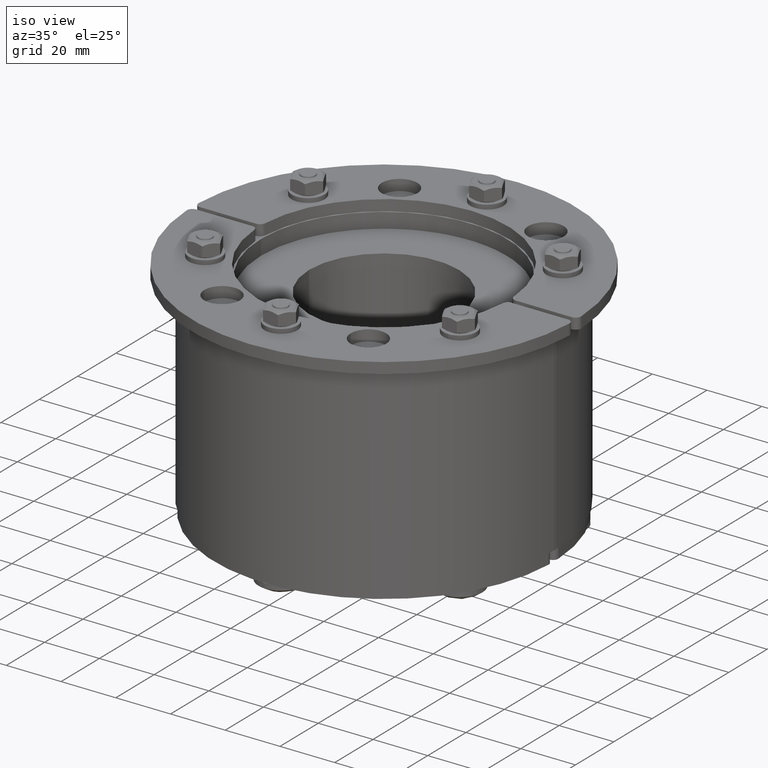
[diagram: clean part render]
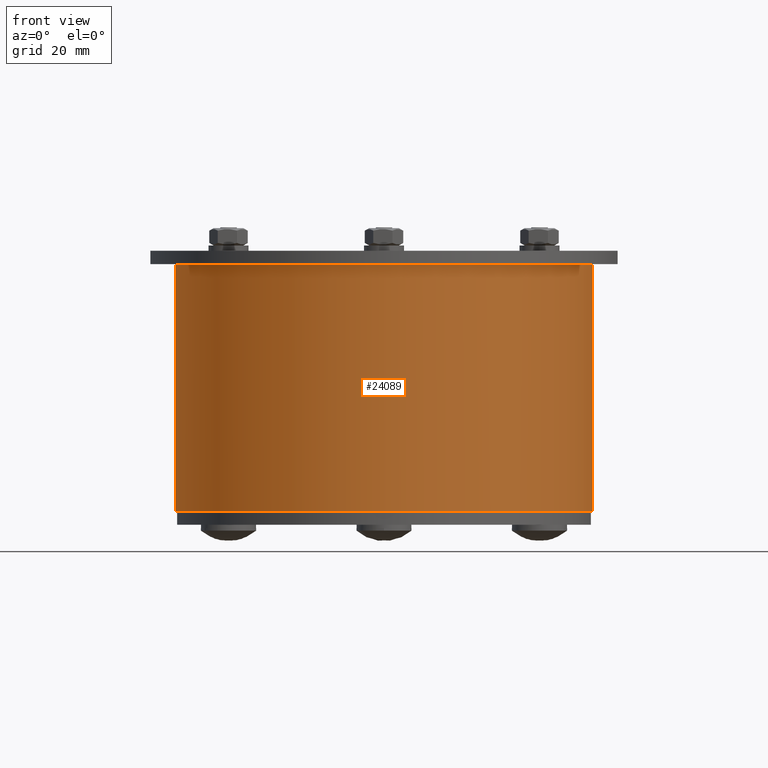
[diagram: tour spotlight — one face highlighted and labeled with its STEP entity id]
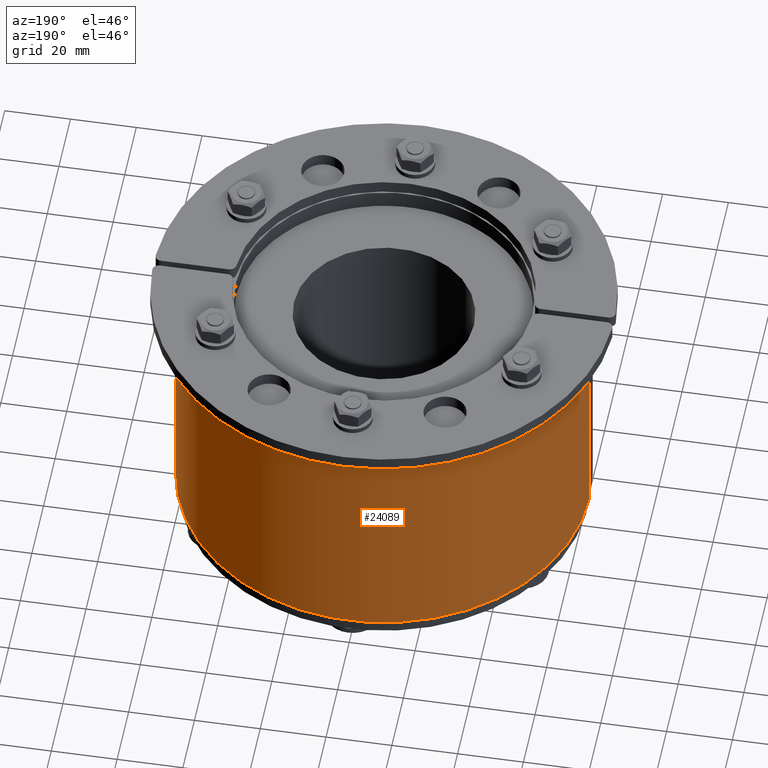
[diagram: tour spotlight — one face highlighted and labeled with its STEP entity id]
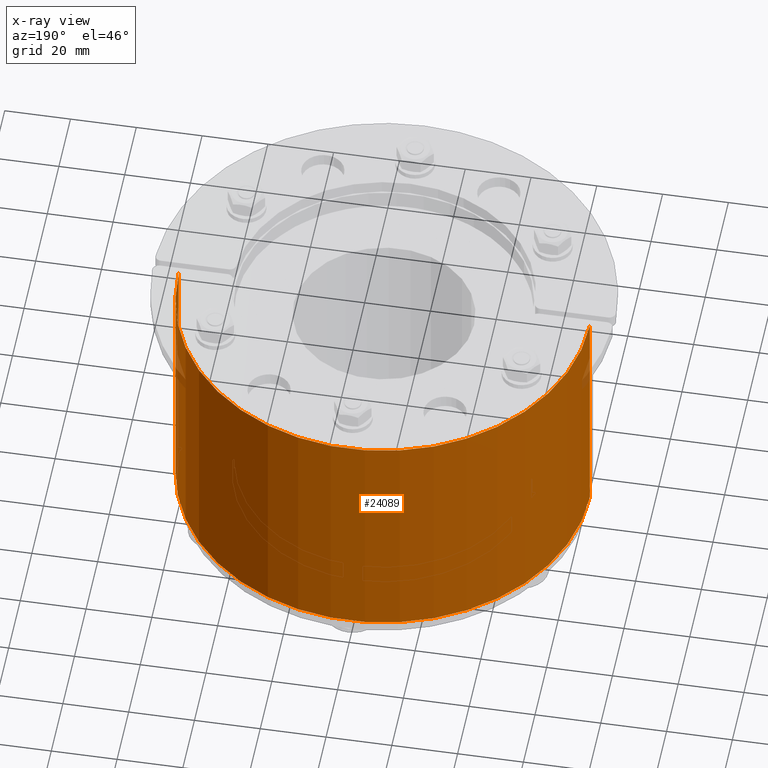
[diagram: x-ray of the same camera — body ghosted, this tour face saturated]
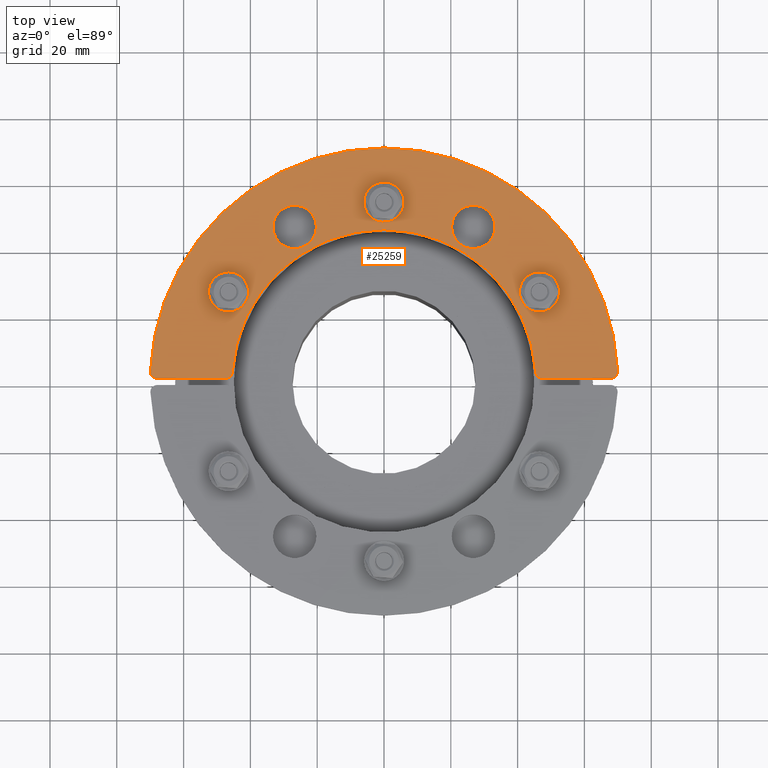
[diagram: tour spotlight — one face highlighted and labeled with its STEP entity id]
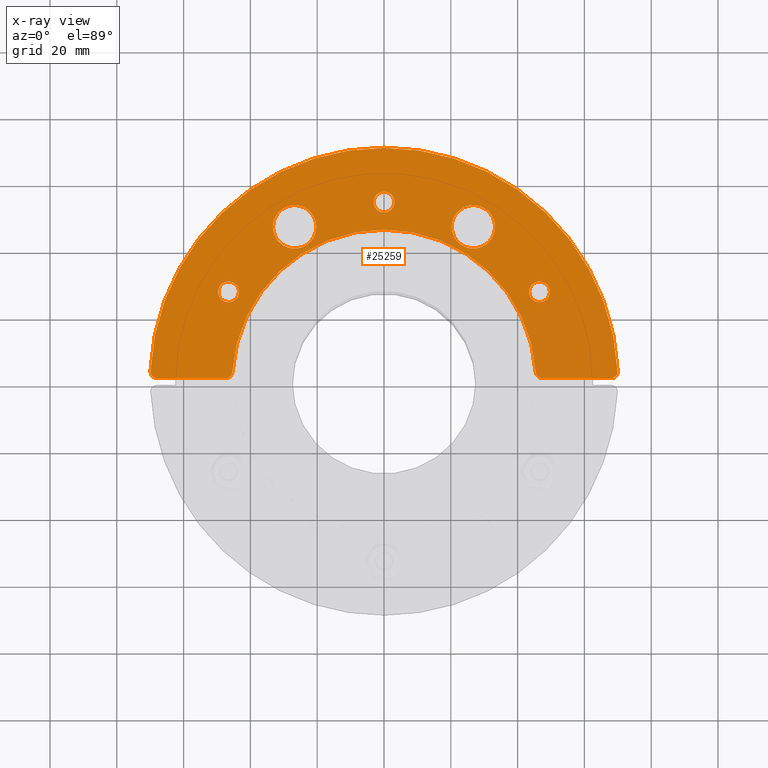
[diagram: x-ray of the same camera — body ghosted, this tour face saturated]
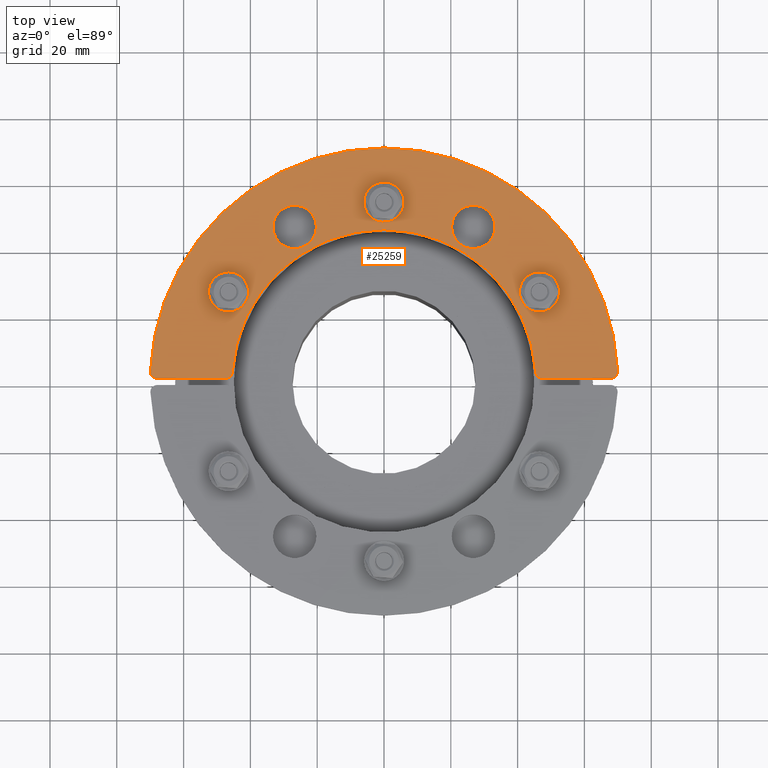
[diagram: tour spotlight — one face highlighted and labeled with its STEP entity id]
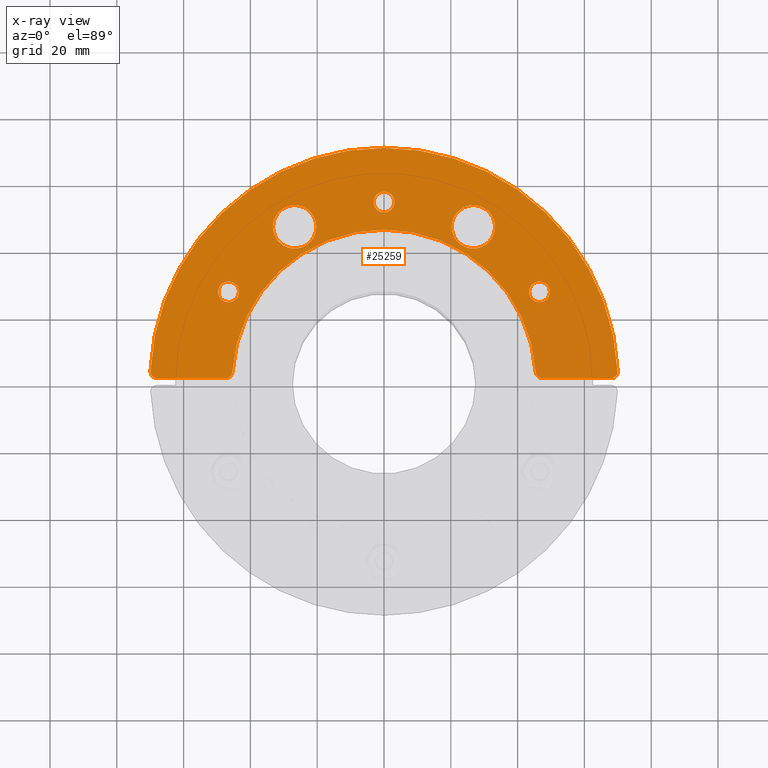
[diagram: x-ray of the same camera — body ghosted, this tour face saturated]
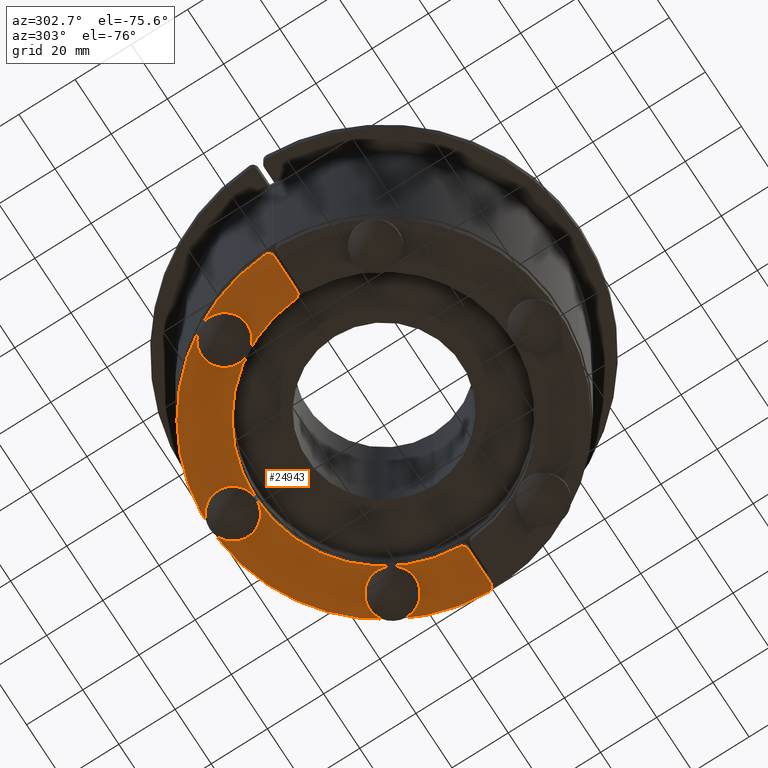
[diagram: tour spotlight — one face highlighted and labeled with its STEP entity id]
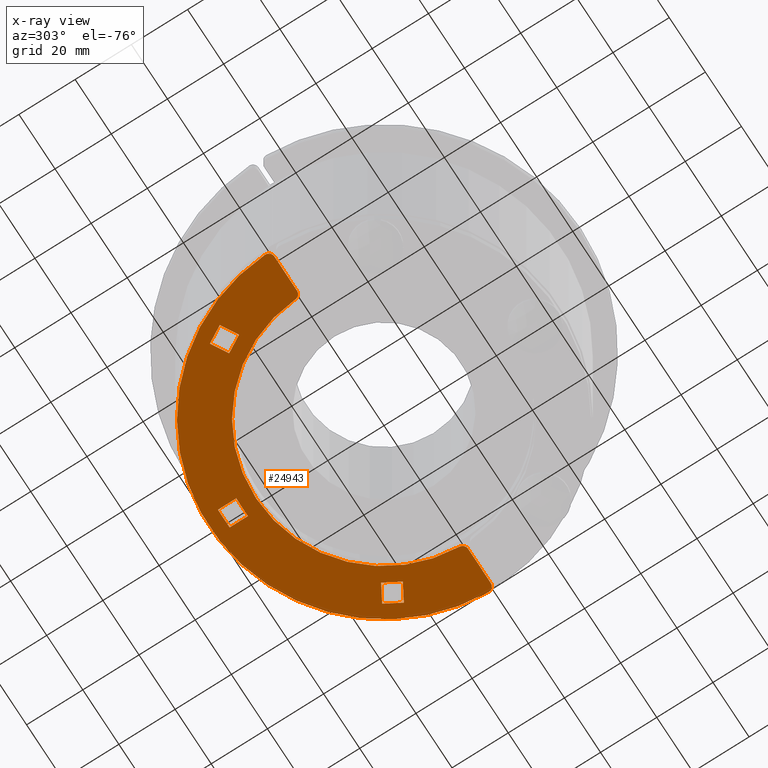
[diagram: x-ray of the same camera — body ghosted, this tour face saturated]
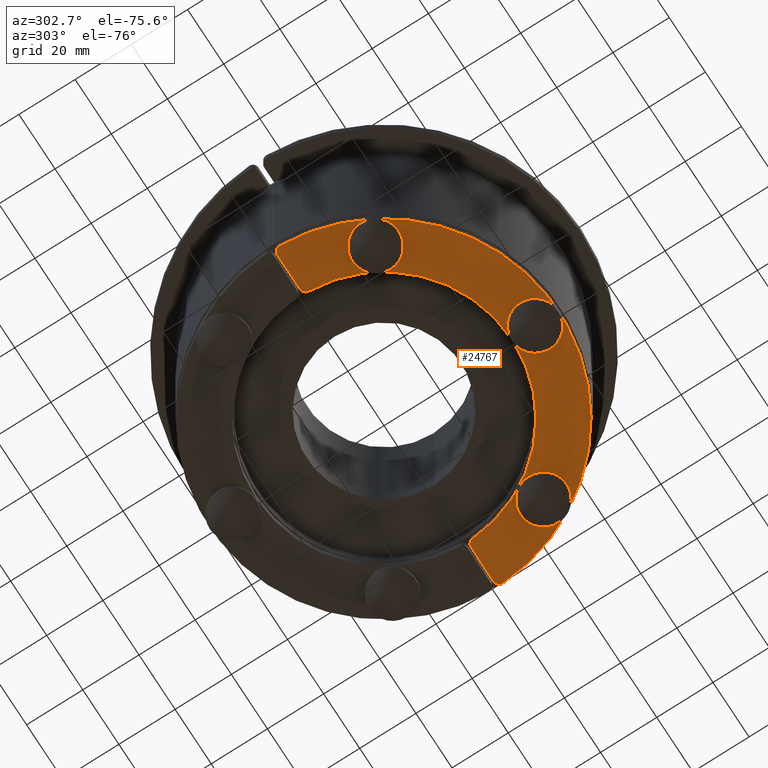
[diagram: tour spotlight — one face highlighted and labeled with its STEP entity id]
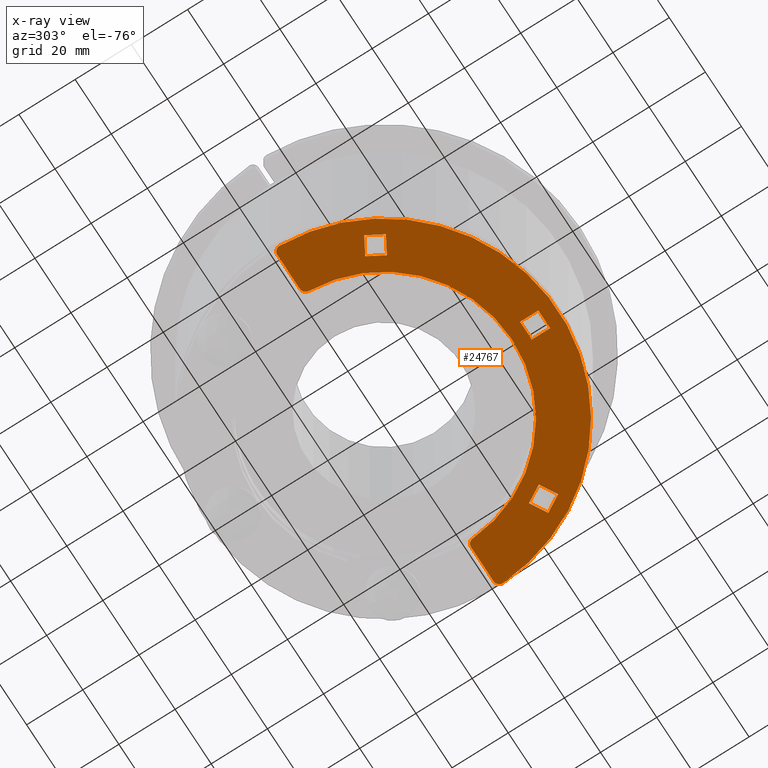
[diagram: x-ray of the same camera — body ghosted, this tour face saturated]
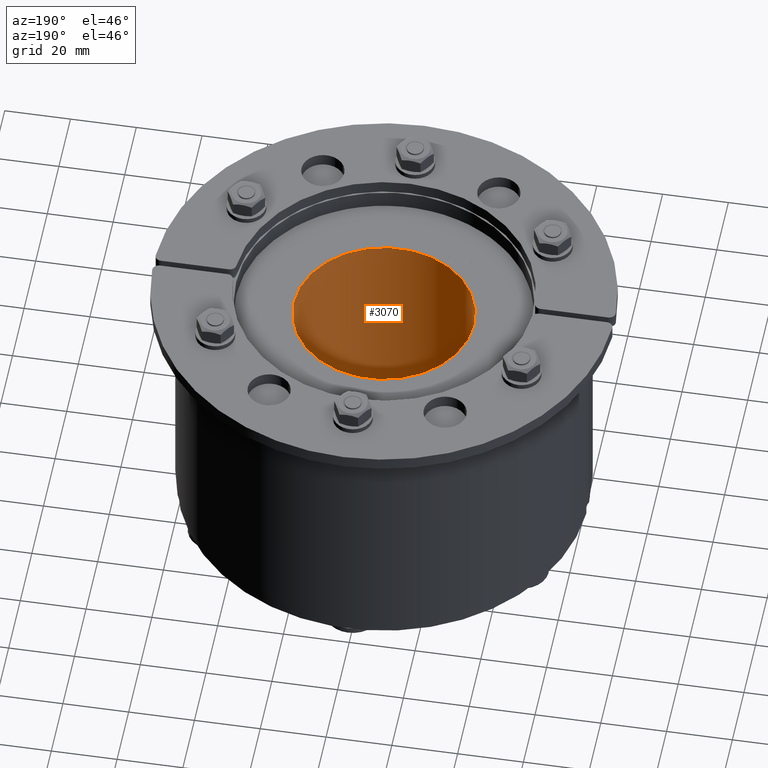
[diagram: tour spotlight — one face highlighted and labeled with its STEP entity id]
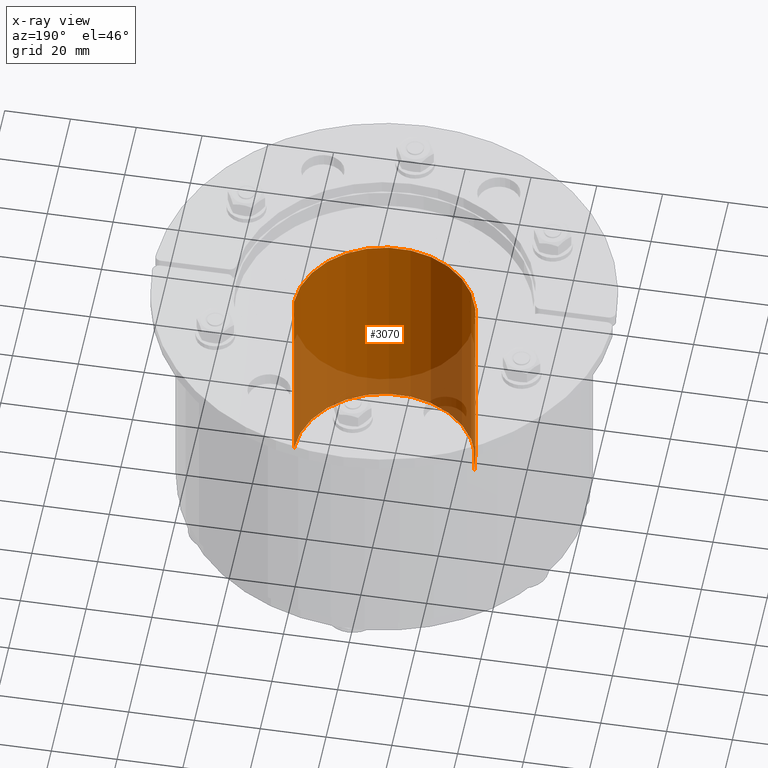
[diagram: x-ray of the same camera — body ghosted, this tour face saturated]
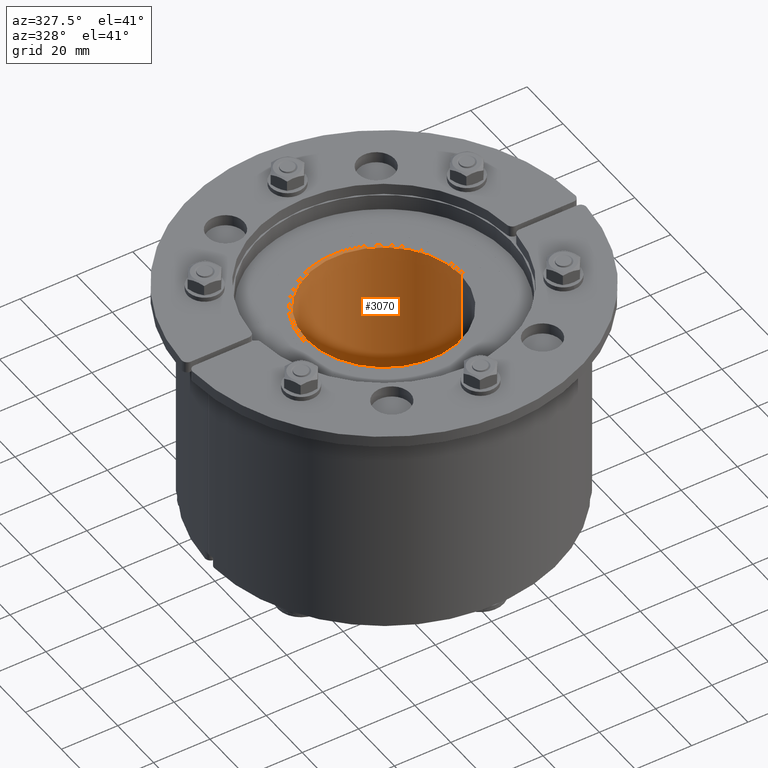
[diagram: tour spotlight — one face highlighted and labeled with its STEP entity id]
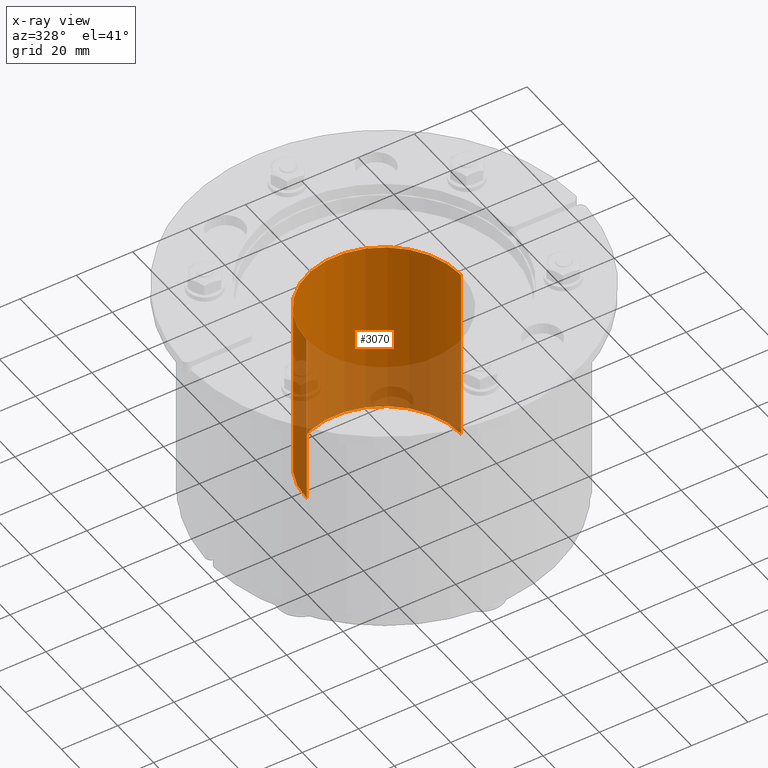
[diagram: x-ray of the same camera — body ghosted, this tour face saturated]
A machine part: a face-by-face anatomy tour. The part has 1790 B-rep faces; the first image is the clean iso view, then the 8 largest visible faces are spotlighted one at a time (largest first), each with its STEP entity span.

Face 1 — front view, entity #24089. In plain terms, the highlighted cylindrical surface (partial cylindrical patch) has radius 62.5 mm, axis along (0, 0, -1).
Definition (entity closure, byte-faithful):
#10103=CARTESIAN_POINT('',(62.497999967998979,-0.5,74.0));
#10104=VERTEX_POINT('',#10103);
#10105=CARTESIAN_POINT('',(-62.497999967998979,-0.5,74.0));
#10106=VERTEX_POINT('',#10105);
#10107=CARTESIAN_POINT('',(0.0,0.0,74.0));
#10108=DIRECTION('',(0.0,0.0,1.0));
#10109=DIRECTION('',(-0.999967999487984,0.008,0.0));
#10110=AXIS2_PLACEMENT_3D('',#10107,#10108,#10109);
#10111=CIRCLE('',#10110,62.500000000000014);
#10112=EDGE_CURVE('',#10104,#10106,#10111,.T.);
#23997=CARTESIAN_POINT('',(62.497999967998979,-0.5,0.0));
#23998=VERTEX_POINT('',#23997);
#24007=CARTESIAN_POINT('',(62.497999967998979,-0.5,0.0));
#24008=DIRECTION('',(0.0,0.0,1.0));
#24009=VECTOR('',#24008,74.0);
#24010=LINE('',#24007,#24009);
#24011=EDGE_CURVE('',#23998,#10104,#24010,.T.);
#24053=CARTESIAN_POINT('',(-62.497999967998979,-0.5,0.0));
#24054=VERTEX_POINT('',#24053);
#24063=CARTESIAN_POINT('',(-62.497999967998979,-0.5,0.0));
#24064=DIRECTION('',(0.0,0.0,1.0));
#24065=VECTOR('',#24064,74.0);
#24066=LINE('',#24063,#24065);
#24067=EDGE_CURVE('',#24054,#10106,#24066,.T.);
#24072=CARTESIAN_POINT('',(0.0,0.0,0.0));
#24073=DIRECTION('',(0.0,0.0,1.0));
#24074=DIRECTION('',(-0.999967999487984,0.008,0.0));
#24075=AXIS2_PLACEMENT_3D('',#24072,#24073,#24074);
#24076=CYLINDRICAL_SURFACE('',#24075,62.500000000000021);
#24077=CARTESIAN_POINT('',(0.0,0.0,0.0));
#24078=DIRECTION('',(0.0,0.0,-1.0));
#24079=DIRECTION('',(-0.999967999487984,0.008,0.0));
#24080=AXIS2_PLACEMENT_3D('',#24077,#24078,#24079);
#24081=CIRCLE('',#24080,62.500000000000014);
#24082=EDGE_CURVE('',#24054,#23998,#24081,.T.);
#24083=ORIENTED_EDGE('',*,*,#24082,.F.);
#24084=ORIENTED_EDGE('',*,*,#24067,.T.);
#24085=ORIENTED_EDGE('',*,*,#10112,.F.);
#24086=ORIENTED_EDGE('',*,*,#24011,.F.);
#24087=EDGE_LOOP('',(#24083,#24084,#24085,#24086));
#24088=FACE_OUTER_BOUND('',#24087,.T.);
#24089=ADVANCED_FACE('',(#24088),#24076,.T.);

Face 2 — auxiliary view, entity #24089. An x-ray twin of the same camera follows (body ghosted, this face saturated) — the face is partly hidden behind the body. In plain terms, the highlighted cylindrical surface (partial cylindrical patch) has radius 62.5 mm, axis along (0, 0, -1).
Definition (entity closure, byte-faithful):
#10103=CARTESIAN_POINT('',(62.497999967998979,-0.5,74.0));
#10104=VERTEX_POINT('',#10103);
#10105=CARTESIAN_POINT('',(-62.497999967998979,-0.5,74.0));
#10106=VERTEX_POINT('',#10105);
#10107=CARTESIAN_POINT('',(0.0,0.0,74.0));
#10108=DIRECTION('',(0.0,0.0,1.0));
#10109=DIRECTION('',(-0.999967999487984,0.008,0.0));
#10110=AXIS2_PLACEMENT_3D('',#10107,#10108,#10109);
#10111=CIRCLE('',#10110,62.500000000000014);
#10112=EDGE_CURVE('',#10104,#10106,#10111,.T.);
#23997=CARTESIAN_POINT('',(62.497999967998979,-0.5,0.0));
#23998=VERTEX_POINT('',#23997);
#24007=CARTESIAN_POINT('',(62.497999967998979,-0.5,0.0));
#24008=DIRECTION('',(0.0,0.0,1.0));
#24009=VECTOR('',#24008,74.0);
#24010=LINE('',#24007,#24009);
#24011=EDGE_CURVE('',#23998,#10104,#24010,.T.);
#24053=CARTESIAN_POINT('',(-62.497999967998979,-0.5,0.0));
#24054=VERTEX_POINT('',#24053);
#24063=CARTESIAN_POINT('',(-62.497999967998979,-0.5,0.0));
#24064=DIRECTION('',(0.0,0.0,1.0));
#24065=VECTOR('',#24064,74.0);
#24066=LINE('',#24063,#24065);
#24067=EDGE_CURVE('',#24054,#10106,#24066,.T.);
#24072=CARTESIAN_POINT('',(0.0,0.0,0.0));
#24073=DIRECTION('',(0.0,0.0,1.0));
#24074=DIRECTION('',(-0.999967999487984,0.008,0.0));
#24075=AXIS2_PLACEMENT_3D('',#24072,#24073,#24074);
#24076=CYLINDRICAL_SURFACE('',#24075,62.500000000000021);
#24077=CARTESIAN_POINT('',(0.0,0.0,0.0));
#24078=DIRECTION('',(0.0,0.0,-1.0));
#24079=DIRECTION('',(-0.999967999487984,0.008,0.0));
#24080=AXIS2_PLACEMENT_3D('',#24077,#24078,#24079);
#24081=CIRCLE('',#24080,62.500000000000014);
#24082=EDGE_CURVE('',#24054,#23998,#24081,.T.);
#24083=ORIENTED_EDGE('',*,*,#24082,.F.);
#24084=ORIENTED_EDGE('',*,*,#24067,.T.);
#24085=ORIENTED_EDGE('',*,*,#10112,.F.);
#24086=ORIENTED_EDGE('',*,*,#24011,.F.);
#24087=EDGE_LOOP('',(#24083,#24084,#24085,#24086));
#24088=FACE_OUTER_BOUND('',#24087,.T.);
#24089=ADVANCED_FACE('',(#24088),#24076,.T.);

Face 3 — top view, entity #25259. An x-ray twin of the same camera follows (body ghosted, this face saturated) — the face is partly hidden behind the body. In plain terms, the highlighted planar face has unit normal (-0, -0, 1).
Definition (entity closure, byte-faithful):
#25047=CARTESIAN_POINT('',(-20.250000000000021,46.33235910246745,0.0));
#25048=VERTEX_POINT('',#25047);
#25049=CARTESIAN_POINT('',(-26.750000000000021,46.33235910246745,0.0));
#25050=DIRECTION('',(0.0,0.0,-1.0));
#25051=DIRECTION('',(-1.0,0.0,0.0));
#25052=AXIS2_PLACEMENT_3D('',#25049,#25050,#25051);
#25053=CIRCLE('',#25052,6.5);
#25054=EDGE_CURVE('',#25048,#25048,#25053,.T.);
#25075=CARTESIAN_POINT('',(33.25,46.332359102467471,0.0));
#25076=VERTEX_POINT('',#25075);
#25077=CARTESIAN_POINT('',(26.75,46.332359102467471,0.0));
#25078=DIRECTION('',(0.0,0.0,-1.0));
#25079=DIRECTION('',(-1.0,0.0,0.0));
#25080=AXIS2_PLACEMENT_3D('',#25077,#25078,#25079);
#25081=CIRCLE('',#25080,6.5);
#25082=EDGE_CURVE('',#25076,#25076,#25081,.T.);
#25103=CARTESIAN_POINT('',(69.931843982324438,3.088235294117641,0.0));
#25104=VERTEX_POINT('',#25103);
#25111=CARTESIAN_POINT('',(67.933791297115164,1.000000000000002,0.0));
#25112=VERTEX_POINT('',#25111);
#25113=CARTESIAN_POINT('',(67.933791297115164,2.999999999999994,0.0));
#25114=DIRECTION('',(0.0,0.0,-1.0));
#25115=DIRECTION('',(0.722536382149308,-0.691332898443715,0.0));
#25116=AXIS2_PLACEMENT_3D('',#25113,#25114,#25115);
#25117=CIRCLE('',#25116,2.0);
#25118=EDGE_CURVE('',#25104,#25112,#25117,.T.);
#25135=CARTESIAN_POINT('',(47.405168494585055,1.000000000000002,0.0));
#25136=VERTEX_POINT('',#25135);
#25137=CARTESIAN_POINT('',(67.933791297115178,1.000000000000002,0.0));
#25138=DIRECTION('',(-1.0,0.0,0.0));
#25139=VECTOR('',#25138,20.528622802530116);
#25140=LINE('',#25137,#25139);
#25141=EDGE_CURVE('',#25112,#25136,#25140,.T.);
#25160=CARTESIAN_POINT('',(-1.088769E-014,33.01283094405192,0.0));
#25161=DIRECTION('',(0.0,0.0,1.0));
#25162=DIRECTION('',(1.0,0.0,0.0));
#25163=AXIS2_PLACEMENT_3D('',#25160,#25161,#25162);
#25164=PLANE('',#25163);
#25165=ORIENTED_EDGE('',*,*,#25118,.F.);
#25166=CARTESIAN_POINT('',(-69.931843982324438,3.08823529411764,0.0));
#25167=VERTEX_POINT('',#25166);
#25168=CARTESIAN_POINT('',(0.0,0.0,0.0));
#25169=DIRECTION('',(0.0,0.0,-1.0));
#25170=DIRECTION('',(-0.999897953976978,-0.014285714285714,0.0));
#25171=AXIS2_PLACEMENT_3D('',#25168,#25169,#25170);
#25172=CIRCLE('',#25171,70.0);
#25173=EDGE_CURVE('',#25167,#25104,#25172,.T.);
#25174=ORIENTED_EDGE('',*,*,#25173,.F.);
#25175=CARTESIAN_POINT('',(-67.933791297115164,0.999999999999992,0.0));
#25176=VERTEX_POINT('',#25175);
#25177=CARTESIAN_POINT('',(-67.933791297115164,2.999999999999992,0.0));
#25178=DIRECTION('',(0.0,0.0,-1.0));
#25179=DIRECTION('',(-0.722536382149307,-0.691332898443717,0.0));
#25180=AXIS2_PLACEMENT_3D('',#25177,#25178,#25179);
#25181=CIRCLE('',#25180,2.0);
#25182=EDGE_CURVE('',#25176,#25167,#25181,.T.);
#25183=ORIENTED_EDGE('',*,*,#25182,.F.);
#25184=CARTESIAN_POINT('',(-47.405168494585055,0.999999999999994,0.0));
#25185=VERTEX_POINT('',#25184);
#25186=CARTESIAN_POINT('',(-47.405168494585062,0.999999999999994,0.0));
#25187=DIRECTION('',(-1.0,0.0,0.0));
#25188=VECTOR('',#25187,20.528622802530101);
#25189=LINE('',#25186,#25188);
#25190=EDGE_CURVE('',#25185,#25176,#25189,.T.);
#25191=ORIENTED_EDGE('',*,*,#25190,.F.);
#25192=CARTESIAN_POINT('',(-45.409161400076215,2.873684210526307,0.0));
#25193=VERTEX_POINT('',#25192);
#25194=CARTESIAN_POINT('',(-47.405168494585055,2.99999999999999,0.0));
#25195=DIRECTION('',(0.0,0.0,-1.0));
#25196=DIRECTION('',(0.684412925529303,-0.729094607968281,0.0));
#25197=AXIS2_PLACEMENT_3D('',#25194,#25195,#25196);
#25198=CIRCLE('',#25197,2.0);
#25199=EDGE_CURVE('',#25193,#25185,#25198,.T.);
#25200=ORIENTED_EDGE('',*,*,#25199,.F.);
#25201=CARTESIAN_POINT('',(45.409161400076208,2.873684210526318,0.0));
#25202=VERTEX_POINT('',#25201);
#25203=CARTESIAN_POINT('',(0.0,0.0,0.0));
#25204=DIRECTION('',(0.0,0.0,1.0));
#25205=DIRECTION('',(0.999758454102757,0.021978021978022,0.0));
#25206=AXIS2_PLACEMENT_3D('',#25203,#25204,#25205);
#25207=CIRCLE('',#25206,45.5);
#25208=EDGE_CURVE('',#25202,#25193,#25207,.T.);
#25209=ORIENTED_EDGE('',*,*,#25208,.F.);
#25210=CARTESIAN_POINT('',(47.405168494585055,3.000000000000003,0.0));
#25211=DIRECTION('',(0.0,0.0,-1.0));
#25212=DIRECTION('',(-0.684412925529302,-0.729094607968282,0.0));
#25213=AXIS2_PLACEMENT_3D('',#25210,#25211,#25212);
#25214=CIRCLE('',#25213,2.0);
#25215=EDGE_CURVE('',#25136,#25202,#25214,.T.);
#25216=ORIENTED_EDGE('',*,*,#25215,.F.);
#25217=ORIENTED_EDGE('',*,*,#25141,.F.);
#25218=EDGE_LOOP('',(#25165,#25174,#25183,#25191,#25200,#25209,#25216,#25217));
#25219=FACE_OUTER_BOUND('',#25218,.T.);
#25220=ORIENTED_EDGE('',*,*,#25054,.T.);
#25221=EDGE_LOOP('',(#25220));
#25222=FACE_BOUND('',#25221,.T.);
#25223=ORIENTED_EDGE('',*,*,#25082,.T.);
#25224=EDGE_LOOP('',(#25223));
#25225=FACE_BOUND('',#25224,.T.);
#25226=CARTESIAN_POINT('',(-43.448865453413568,26.875000000000021,0.0));
#25227=VERTEX_POINT('',#25226);
#25228=CARTESIAN_POINT('',(-46.548865453413569,26.875000000000021,0.0));
#25229=DIRECTION('',(0.0,0.0,-1.0));
#25230=DIRECTION('',(-1.0,0.0,0.0));
#25231=AXIS2_PLACEMENT_3D('',#25228,#25229,#25230);
#25232=CIRCLE('',#25231,3.100000000000001);
#25233=EDGE_CURVE('',#25227,#25227,#25232,.T.);
#25234=ORIENTED_EDGE('',*,*,#25233,.T.);
#25235=EDGE_LOOP('',(#25234));
#25236=FACE_BOUND('',#25235,.T.);
#25237=CARTESIAN_POINT('',(49.648865453413578,26.875000000000007,0.0));
#25238=VERTEX_POINT('',#25237);
#25239=CARTESIAN_POINT('',(46.548865453413569,26.875000000000007,0.0));
#25240=DIRECTION('',(0.0,0.0,-1.0));
#25241=DIRECTION('',(-1.0,0.0,0.0));
#25242=AXIS2_PLACEMENT_3D('',#25239,#25240,#25241);
#25243=CIRCLE('',#25242,3.100000000000001);
#25244=EDGE_CURVE('',#25238,#25238,#25243,.T.);
#25245=ORIENTED_EDGE('',*,*,#25244,.T.);
#25246=EDGE_LOOP('',(#25245));
#25247=FACE_BOUND('',#25246,.T.);
#25248=CARTESIAN_POINT('',(3.099999999999999,53.75,0.0));
#25249=VERTEX_POINT('',#25248);
#25250=CARTESIAN_POINT('',(-1.500175E-015,53.75,0.0));
#25251=DIRECTION('',(0.0,0.0,-1.0));
#25252=DIRECTION('',(-1.0,0.0,0.0));
#25253=AXIS2_PLACEMENT_3D('',#25250,#25251,#25252);
#25254=CIRCLE('',#25253,3.100000000000001);
#25255=EDGE_CURVE('',#25249,#25249,#25254,.T.);
#25256=ORIENTED_EDGE('',*,*,#25255,.T.);
#25257=EDGE_LOOP('',(#25256));
#25258=FACE_BOUND('',#25257,.T.);
#25259=ADVANCED_FACE('',(#25219,#25222,#25225,#25236,#25247,#25258),#25164,.T.);

Face 4 — top view, entity #25259. An x-ray twin of the same camera follows (body ghosted, this face saturated) — the face is partly hidden behind the body. In plain terms, the highlighted planar face has unit normal (0, -0, 1).
Definition (entity closure, byte-faithful):
#25047=CARTESIAN_POINT('',(-20.250000000000021,46.33235910246745,0.0));
#25048=VERTEX_POINT('',#25047);
#25049=CARTESIAN_POINT('',(-26.750000000000021,46.33235910246745,0.0));
#25050=DIRECTION('',(0.0,0.0,-1.0));
#25051=DIRECTION('',(-1.0,0.0,0.0));
#25052=AXIS2_PLACEMENT_3D('',#25049,#25050,#25051);
#25053=CIRCLE('',#25052,6.5);
#25054=EDGE_CURVE('',#25048,#25048,#25053,.T.);
#25075=CARTESIAN_POINT('',(33.25,46.332359102467471,0.0));
#25076=VERTEX_POINT('',#25075);
#25077=CARTESIAN_POINT('',(26.75,46.332359102467471,0.0));
#25078=DIRECTION('',(0.0,0.0,-1.0));
#25079=DIRECTION('',(-1.0,0.0,0.0));
#25080=AXIS2_PLACEMENT_3D('',#25077,#25078,#25079);
#25081=CIRCLE('',#25080,6.5);
#25082=EDGE_CURVE('',#25076,#25076,#25081,.T.);
#25103=CARTESIAN_POINT('',(69.931843982324438,3.088235294117641,0.0));
#25104=VERTEX_POINT('',#25103);
#25111=CARTESIAN_POINT('',(67.933791297115164,1.000000000000002,0.0));
#25112=VERTEX_POINT('',#25111);
#25113=CARTESIAN_POINT('',(67.933791297115164,2.999999999999994,0.0));
#25114=DIRECTION('',(0.0,0.0,-1.0));
#25115=DIRECTION('',(0.722536382149308,-0.691332898443715,0.0));
#25116=AXIS2_PLACEMENT_3D('',#25113,#25114,#25115);
#25117=CIRCLE('',#25116,2.0);
#25118=EDGE_CURVE('',#25104,#25112,#25117,.T.);
#25135=CARTESIAN_POINT('',(47.405168494585055,1.000000000000002,0.0));
#25136=VERTEX_POINT('',#25135);
#25137=CARTESIAN_POINT('',(67.933791297115178,1.000000000000002,0.0));
#25138=DIRECTION('',(-1.0,0.0,0.0));
#25139=VECTOR('',#25138,20.528622802530116);
#25140=LINE('',#25137,#25139);
#25141=EDGE_CURVE('',#25112,#25136,#25140,.T.);
#25160=CARTESIAN_POINT('',(-1.088769E-014,33.01283094405192,0.0));
#25161=DIRECTION('',(0.0,0.0,1.0));
#25162=DIRECTION('',(1.0,0.0,0.0));
#25163=AXIS2_PLACEMENT_3D('',#25160,#25161,#25162);
#25164=PLANE('',#25163);
#25165=ORIENTED_EDGE('',*,*,#25118,.F.);
#25166=CARTESIAN_POINT('',(-69.931843982324438,3.08823529411764,0.0));
#25167=VERTEX_POINT('',#25166);
#25168=CARTESIAN_POINT('',(0.0,0.0,0.0));
#25169=DIRECTION('',(0.0,0.0,-1.0));
#25170=DIRECTION('',(-0.999897953976978,-0.014285714285714,0.0));
#25171=AXIS2_PLACEMENT_3D('',#25168,#25169,#25170);
#25172=CIRCLE('',#25171,70.0);
#25173=EDGE_CURVE('',#25167,#25104,#25172,.T.);
#25174=ORIENTED_EDGE('',*,*,#25173,.F.);
#25175=CARTESIAN_POINT('',(-67.933791297115164,0.999999999999992,0.0));
#25176=VERTEX_POINT('',#25175);
#25177=CARTESIAN_POINT('',(-67.933791297115164,2.999999999999992,0.0));
#25178=DIRECTION('',(0.0,0.0,-1.0));
#25179=DIRECTION('',(-0.722536382149307,-0.691332898443717,0.0));
#25180=AXIS2_PLACEMENT_3D('',#25177,#25178,#25179);
#25181=CIRCLE('',#25180,2.0);
#25182=EDGE_CURVE('',#25176,#25167,#25181,.T.);
#25183=ORIENTED_EDGE('',*,*,#25182,.F.);
#25184=CARTESIAN_POINT('',(-47.405168494585055,0.999999999999994,0.0));
#25185=VERTEX_POINT('',#25184);
#25186=CARTESIAN_POINT('',(-47.405168494585062,0.999999999999994,0.0));
#25187=DIRECTION('',(-1.0,0.0,0.0));
#25188=VECTOR('',#25187,20.528622802530101);
#25189=LINE('',#25186,#25188);
#25190=EDGE_CURVE('',#25185,#25176,#25189,.T.);
#25191=ORIENTED_EDGE('',*,*,#25190,.F.);
#25192=CARTESIAN_POINT('',(-45.409161400076215,2.873684210526307,0.0));
#25193=VERTEX_POINT('',#25192);
#25194=CARTESIAN_POINT('',(-47.405168494585055,2.99999999999999,0.0));
#25195=DIRECTION('',(0.0,0.0,-1.0));
#25196=DIRECTION('',(0.684412925529303,-0.729094607968281,0.0));
#25197=AXIS2_PLACEMENT_3D('',#25194,#25195,#25196);
#25198=CIRCLE('',#25197,2.0);
#25199=EDGE_CURVE('',#25193,#25185,#25198,.T.);
#25200=ORIENTED_EDGE('',*,*,#25199,.F.);
#25201=CARTESIAN_POINT('',(45.409161400076208,2.873684210526318,0.0));
#25202=VERTEX_POINT('',#25201);
#25203=CARTESIAN_POINT('',(0.0,0.0,0.0));
#25204=DIRECTION('',(0.0,0.0,1.0));
#25205=DIRECTION('',(0.999758454102757,0.021978021978022,0.0));
#25206=AXIS2_PLACEMENT_3D('',#25203,#25204,#25205);
#25207=CIRCLE('',#25206,45.5);
#25208=EDGE_CURVE('',#25202,#25193,#25207,.T.);
#25209=ORIENTED_EDGE('',*,*,#25208,.F.);
#25210=CARTESIAN_POINT('',(47.405168494585055,3.000000000000003,0.0));
#25211=DIRECTION('',(0.0,0.0,-1.0));
#25212=DIRECTION('',(-0.684412925529302,-0.729094607968282,0.0));
#25213=AXIS2_PLACEMENT_3D('',#25210,#25211,#25212);
#25214=CIRCLE('',#25213,2.0);
#25215=EDGE_CURVE('',#25136,#25202,#25214,.T.);
#25216=ORIENTED_EDGE('',*,*,#25215,.F.);
#25217=ORIENTED_EDGE('',*,*,#25141,.F.);
#25218=EDGE_LOOP('',(#25165,#25174,#25183,#25191,#25200,#25209,#25216,#25217));
#25219=FACE_OUTER_BOUND('',#25218,.T.);
#25220=ORIENTED_EDGE('',*,*,#25054,.T.);
#25221=EDGE_LOOP('',(#25220));
#25222=FACE_BOUND('',#25221,.T.);
#25223=ORIENTED_EDGE('',*,*,#25082,.T.);
#25224=EDGE_LOOP('',(#25223));
#25225=FACE_BOUND('',#25224,.T.);
#25226=CARTESIAN_POINT('',(-43.448865453413568,26.875000000000021,0.0));
#25227=VERTEX_POINT('',#25226);
#25228=CARTESIAN_POINT('',(-46.548865453413569,26.875000000000021,0.0));
#25229=DIRECTION('',(0.0,0.0,-1.0));
#25230=DIRECTION('',(-1.0,0.0,0.0));
#25231=AXIS2_PLACEMENT_3D('',#25228,#25229,#25230);
#25232=CIRCLE('',#25231,3.100000000000001);
#25233=EDGE_CURVE('',#25227,#25227,#25232,.T.);
#25234=ORIENTED_EDGE('',*,*,#25233,.T.);
#25235=EDGE_LOOP('',(#25234));
#25236=FACE_BOUND('',#25235,.T.);
#25237=CARTESIAN_POINT('',(49.648865453413578,26.875000000000007,0.0));
#25238=VERTEX_POINT('',#25237);
#25239=CARTESIAN_POINT('',(46.548865453413569,26.875000000000007,0.0));
#25240=DIRECTION('',(0.0,0.0,-1.0));
#25241=DIRECTION('',(-1.0,0.0,0.0));
#25242=AXIS2_PLACEMENT_3D('',#25239,#25240,#25241);
#25243=CIRCLE('',#25242,3.100000000000001);
#25244=EDGE_CURVE('',#25238,#25238,#25243,.T.);
#25245=ORIENTED_EDGE('',*,*,#25244,.T.);
#25246=EDGE_LOOP('',(#25245));
#25247=FACE_BOUND('',#25246,.T.);
#25248=CARTESIAN_POINT('',(3.099999999999999,53.75,0.0));
#25249=VERTEX_POINT('',#25248);
#25250=CARTESIAN_POINT('',(-1.500175E-015,53.75,0.0));
#25251=DIRECTION('',(0.0,0.0,-1.0));
#25252=DIRECTION('',(-1.0,0.0,0.0));
#25253=AXIS2_PLACEMENT_3D('',#25250,#25251,#25252);
#25254=CIRCLE('',#25253,3.100000000000001);
#25255=EDGE_CURVE('',#25249,#25249,#25254,.T.);
#25256=ORIENTED_EDGE('',*,*,#25255,.T.);
#25257=EDGE_LOOP('',(#25256));
#25258=FACE_BOUND('',#25257,.T.);
#25259=ADVANCED_FACE('',(#25219,#25222,#25225,#25236,#25247,#25258),#25164,.T.);

Face 5 — auxiliary view, entity #24943. An x-ray twin of the same camera follows (body ghosted, this face saturated) — the face is partly hidden behind the body. In plain terms, the highlighted planar face has unit normal (0, -0, 1).
Definition (entity closure, byte-faithful):
#24259=CARTESIAN_POINT('',(3.249999999999999,50.500000000000007,-4.0));
#24260=VERTEX_POINT('',#24259);
#24267=CARTESIAN_POINT('',(-3.250000000000001,50.499999999999986,-4.0));
#24268=VERTEX_POINT('',#24267);
#24269=CARTESIAN_POINT('',(-3.250000000000001,50.499999999999979,-4.0));
#24270=DIRECTION('',(1.0,0.0,0.0));
#24271=VECTOR('',#24270,6.5);
#24272=LINE('',#24269,#24271);
#24273=EDGE_CURVE('',#24268,#24260,#24272,.T.);
#24298=CARTESIAN_POINT('',(-3.250000000000011,56.999999999999993,-4.0));
#24299=VERTEX_POINT('',#24298);
#24300=CARTESIAN_POINT('',(-3.250000000000011,56.999999999999993,-4.0));
#24301=DIRECTION('',(0.0,-1.0,0.0));
#24302=VECTOR('',#24301,6.500000000000007);
#24303=LINE('',#24300,#24302);
#24304=EDGE_CURVE('',#24299,#24268,#24303,.T.);
#24329=CARTESIAN_POINT('',(3.249999999999989,57.000000000000014,-4.0));
#24330=VERTEX_POINT('',#24329);
#24331=CARTESIAN_POINT('',(3.24999999999999,57.000000000000007,-4.0));
#24332=DIRECTION('',(-1.0,0.0,0.0));
#24333=VECTOR('',#24332,6.5);
#24334=LINE('',#24331,#24333);
#24335=EDGE_CURVE('',#24330,#24299,#24334,.T.);
#24358=CARTESIAN_POINT('',(3.249999999999999,50.500000000000007,-4.0));
#24359=DIRECTION('',(0.0,1.0,0.0));
#24360=VECTOR('',#24359,6.500000000000007);
#24361=LINE('',#24358,#24360);
#24362=EDGE_CURVE('',#24260,#24330,#24361,.T.);
#24383=CARTESIAN_POINT('',(47.738448015713004,31.314582562299421,-4.0));
#24384=VERTEX_POINT('',#24383);
#24391=CARTESIAN_POINT('',(50.988448015712997,25.685417437700568,-4.0));
#24392=VERTEX_POINT('',#24391);
#24393=CARTESIAN_POINT('',(50.988448015712997,25.685417437700572,-4.0));
#24394=DIRECTION('',(-0.499999999999999,0.866025403784439,0.0));
#24395=VECTOR('',#24394,6.499999999999998);
#24396=LINE('',#24393,#24395);
#24397=EDGE_CURVE('',#24392,#24384,#24396,.T.);
#24422=CARTESIAN_POINT('',(45.359282891114148,22.435417437700572,-4.0));
#24423=VERTEX_POINT('',#24422);
#24424=CARTESIAN_POINT('',(45.359282891114148,22.435417437700568,-4.0));
#24425=DIRECTION('',(0.866025403784439,0.499999999999999,0.0));
#24426=VECTOR('',#24425,6.500000000000003);
#24427=LINE('',#24424,#24426);
#24428=EDGE_CURVE('',#24423,#24392,#24427,.T.);
#24453=CARTESIAN_POINT('',(42.109282891114148,28.064582562299421,-4.0));
#24454=VERTEX_POINT('',#24453);
#24455=CARTESIAN_POINT('',(42.109282891114155,28.064582562299421,-4.0));
#24456=DIRECTION('',(0.5,-0.866025403784439,0.0));
#24457=VECTOR('',#24456,6.500000000000001);
#24458=LINE('',#24455,#24457);
#24459=EDGE_CURVE('',#24454,#24423,#24458,.T.);
#24482=CARTESIAN_POINT('',(47.738448015713011,31.314582562299421,-4.0));
#24483=DIRECTION('',(-0.866025403784439,-0.499999999999999,0.0));
#24484=VECTOR('',#24483,6.500000000000011);
#24485=LINE('',#24482,#24484);
#24486=EDGE_CURVE('',#24384,#24454,#24485,.T.);
#24507=CARTESIAN_POINT('',(-50.988448015712997,25.685417437700583,-4.0));
#24508=VERTEX_POINT('',#24507);
#24515=CARTESIAN_POINT('',(-47.738448015712976,31.314582562299424,-4.0));
#24516=VERTEX_POINT('',#24515);
#24517=CARTESIAN_POINT('',(-47.738448015712976,31.314582562299424,-4.0));
#24518=DIRECTION('',(-0.500000000000003,-0.866025403784437,0.0));
#24519=VECTOR('',#24518,6.499999999999999);
#24520=LINE('',#24517,#24519);
#24521=EDGE_CURVE('',#24516,#24508,#24520,.T.);
#24546=CARTESIAN_POINT('',(-42.109282891114141,28.064582562299414,-4.0));
#24547=VERTEX_POINT('',#24546);
#24548=CARTESIAN_POINT('',(-42.109282891114141,28.064582562299414,-4.0));
#24549=DIRECTION('',(-0.866025403784437,0.500000000000002,0.0));
#24550=VECTOR('',#24549,6.499999999999991);
#24551=LINE('',#24548,#24550);
#24552=EDGE_CURVE('',#24547,#24516,#24551,.T.);
#24577=CARTESIAN_POINT('',(-45.359282891114141,22.435417437700565,-4.0));
#24578=VERTEX_POINT('',#24577);
#24579=CARTESIAN_POINT('',(-45.359282891114141,22.435417437700565,-4.0));
#24580=DIRECTION('',(0.5,0.866025403784439,0.0));
#24581=VECTOR('',#24580,6.499999999999998);
#24582=LINE('',#24579,#24581);
#24583=EDGE_CURVE('',#24578,#24547,#24582,.T.);
#24606=CARTESIAN_POINT('',(-50.988448015713004,25.685417437700579,-4.0));
#24607=DIRECTION('',(0.866025403784438,-0.500000000000002,0.0));
#24608=VECTOR('',#24607,6.500000000000013);
#24609=LINE('',#24606,#24608);
#24610=EDGE_CURVE('',#24508,#24578,#24609,.T.);
#24621=CARTESIAN_POINT('',(-47.434164902525694,0.5,-4.0));
#24622=VERTEX_POINT('',#24621);
#24623=CARTESIAN_POINT('',(-45.436936906629874,2.394736842105269,-4.0));
#24624=VERTEX_POINT('',#24623);
#24625=CARTESIAN_POINT('',(-47.434164902525694,2.500000000000007,-4.0));
#24626=DIRECTION('',(0.0,0.0,1.0));
#24627=DIRECTION('',(0.688247201611684,-0.725476250110013,0.0));
#24628=AXIS2_PLACEMENT_3D('',#24625,#24626,#24627);
#24629=CIRCLE('',#24628,2.0);
#24630=EDGE_CURVE('',#24622,#24624,#24629,.T.);
#24672=CARTESIAN_POINT('',(-59.947894041408993,0.5,-4.0));
#24673=VERTEX_POINT('',#24672);
#24680=CARTESIAN_POINT('',(-47.434164902525687,0.5,-4.0));
#24681=DIRECTION('',(-1.0,0.0,0.0));
#24682=VECTOR('',#24681,12.513729138883306);
#24683=LINE('',#24680,#24682);
#24684=EDGE_CURVE('',#24622,#24673,#24683,.T.);
#24773=CARTESIAN_POINT('',(-61.946157176122639,2.583333333333333,-4.0));
#24774=VERTEX_POINT('',#24773);
#24775=CARTESIAN_POINT('',(-59.947894041408993,2.5,-4.0));
#24776=DIRECTION('',(0.0,0.0,1.0));
#24777=DIRECTION('',(-0.721687836487034,-0.692218655243171,0.0));
#24778=AXIS2_PLACEMENT_3D('',#24775,#24776,#24777);
#24779=CIRCLE('',#24778,2.0);
#24780=EDGE_CURVE('',#24774,#24673,#24779,.T.);
#24800=CARTESIAN_POINT('',(61.946157176122639,2.583333333333321,-4.0));
#24801=VERTEX_POINT('',#24800);
#24808=CARTESIAN_POINT('',(0.0,0.0,-4.0));
#24809=DIRECTION('',(0.0,0.0,-1.0));
#24810=DIRECTION('',(-0.999967481261068,-0.008064516129032,0.0));
#24811=AXIS2_PLACEMENT_3D('',#24808,#24809,#24810);
#24812=CIRCLE('',#24811,62.0);
#24813=EDGE_CURVE('',#24774,#24801,#24812,.T.);
#24823=CARTESIAN_POINT('',(45.436936906629874,2.394736842105262,-4.0));
#24824=VERTEX_POINT('',#24823);
#24825=CARTESIAN_POINT('',(47.434164902525694,0.5,-4.0));
#24826=VERTEX_POINT('',#24825);
#24827=CARTESIAN_POINT('',(47.434164902525694,2.5,-4.0));
#24828=DIRECTION('',(0.0,0.0,1.0));
#24829=DIRECTION('',(-0.688247201611685,-0.725476250110012,0.0));
#24830=AXIS2_PLACEMENT_3D('',#24827,#24828,#24829);
#24831=CIRCLE('',#24830,2.0);
#24832=EDGE_CURVE('',#24824,#24826,#24831,.T.);
#24856=CARTESIAN_POINT('',(0.0,0.0,-4.0));
#24857=DIRECTION('',(0.0,0.0,1.0));
#24858=DIRECTION('',(0.999939618995809,0.010989010989011,0.0));
#24859=AXIS2_PLACEMENT_3D('',#24856,#24857,#24858);
#24860=CIRCLE('',#24859,45.499999999999993);
#24861=EDGE_CURVE('',#24824,#24624,#24860,.T.);
#24873=CARTESIAN_POINT('',(59.947894041408993,0.5,-4.0));
#24874=VERTEX_POINT('',#24873);
#24875=CARTESIAN_POINT('',(59.947894041408993,2.499999999999988,-4.0));
#24876=DIRECTION('',(0.0,0.0,1.0));
#24877=DIRECTION('',(0.721687836487036,-0.692218655243169,0.0));
#24878=AXIS2_PLACEMENT_3D('',#24875,#24876,#24877);
#24879=CIRCLE('',#24878,2.0);
#24880=EDGE_CURVE('',#24874,#24801,#24879,.T.);
#24899=CARTESIAN_POINT('',(59.947894041409,0.5,-4.0));
#24900=DIRECTION('',(-1.0,0.0,0.0));
#24901=VECTOR('',#24900,12.513729138883306);
#24902=LINE('',#24899,#24901);
#24903=EDGE_CURVE('',#24874,#24826,#24902,.T.);
#24910=CARTESIAN_POINT('',(-2.806819E-015,31.207203141182049,-4.0));
#24911=DIRECTION('',(0.0,0.0,1.0));
#24912=DIRECTION('',(1.0,0.0,0.0));
#24913=AXIS2_PLACEMENT_3D('',#24910,#24911,#24912);
#24914=PLANE('',#24913);
#24915=ORIENTED_EDGE('',*,*,#24630,.F.);
#24916=ORIENTED_EDGE('',*,*,#24684,.T.);
#24917=ORIENTED_EDGE('',*,*,#24780,.F.);
#24918=ORIENTED_EDGE('',*,*,#24813,.T.);
#24919=ORIENTED_EDGE('',*,*,#24880,.F.);
#24920=ORIENTED_EDGE('',*,*,#24903,.T.);
#24921=ORIENTED_EDGE('',*,*,#24832,.F.);
#24922=ORIENTED_EDGE('',*,*,#24861,.T.);
#24923=EDGE_LOOP('',(#24915,#24916,#24917,#24918,#24919,#24920,#24921,#24922));
#24924=FACE_OUTER_BOUND('',#24923,.T.);
#24925=ORIENTED_EDGE('',*,*,#24335,.T.);
#24926=ORIENTED_EDGE('',*,*,#24304,.T.);
#24927=ORIENTED_EDGE('',*,*,#24273,.T.);
#24928=ORIENTED_EDGE('',*,*,#24362,.T.);
#24929=EDGE_LOOP('',(#24925,#24926,#24927,#24928));
#24930=FACE_BOUND('',#24929,.T.);
#24931=ORIENTED_EDGE('',*,*,#24459,.T.);
#24932=ORIENTED_EDGE('',*,*,#24428,.T.);
#24933=ORIENTED_EDGE('',*,*,#24397,.T.);
#24934=ORIENTED_EDGE('',*,*,#24486,.T.);
#24935=EDGE_LOOP('',(#24931,#24932,#24933,#24934));
#24936=FACE_BOUND('',#24935,.T.);
#24937=ORIENTED_EDGE('',*,*,#24583,.T.);
#24938=ORIENTED_EDGE('',*,*,#24552,.T.);
#24939=ORIENTED_EDGE('',*,*,#24521,.T.);
#24940=ORIENTED_EDGE('',*,*,#24610,.T.);
#24941=EDGE_LOOP('',(#24937,#24938,#24939,#24940));
#24942=FACE_BOUND('',#24941,.T.);
#24943=ADVANCED_FACE('',(#24924,#24930,#24936,#24942),#24914,.F.);

Face 6 — auxiliary view, entity #24767. An x-ray twin of the same camera follows (body ghosted, this face saturated) — the face is partly hidden behind the body. In plain terms, the highlighted planar face has unit normal (-0, 0, -1).
Definition (entity closure, byte-faithful):
#24249=CARTESIAN_POINT('',(3.249999999999999,50.500000000000007,0.0));
#24250=VERTEX_POINT('',#24249);
#24251=CARTESIAN_POINT('',(-3.250000000000001,50.499999999999986,0.0));
#24252=VERTEX_POINT('',#24251);
#24253=CARTESIAN_POINT('',(3.249999999999998,50.5,0.0));
#24254=DIRECTION('',(-1.0,0.0,0.0));
#24255=VECTOR('',#24254,6.5);
#24256=LINE('',#24253,#24255);
#24257=EDGE_CURVE('',#24250,#24252,#24256,.T.);
#24289=CARTESIAN_POINT('',(-3.250000000000011,56.999999999999993,0.0));
#24290=VERTEX_POINT('',#24289);
#24291=CARTESIAN_POINT('',(-3.250000000000001,50.499999999999986,0.0));
#24292=DIRECTION('',(0.0,1.0,0.0));
#24293=VECTOR('',#24292,6.500000000000007);
#24294=LINE('',#24291,#24293);
#24295=EDGE_CURVE('',#24252,#24290,#24294,.T.);
#24320=CARTESIAN_POINT('',(3.249999999999989,57.000000000000014,0.0));
#24321=VERTEX_POINT('',#24320);
#24322=CARTESIAN_POINT('',(-3.250000000000011,56.999999999999986,0.0));
#24323=DIRECTION('',(1.0,0.0,0.0));
#24324=VECTOR('',#24323,6.5);
#24325=LINE('',#24322,#24324);
#24326=EDGE_CURVE('',#24290,#24321,#24325,.T.);
#24351=CARTESIAN_POINT('',(3.249999999999989,57.000000000000014,0.0));
#24352=DIRECTION('',(0.0,-1.0,0.0));
#24353=VECTOR('',#24352,6.500000000000007);
#24354=LINE('',#24351,#24353);
#24355=EDGE_CURVE('',#24321,#24250,#24354,.T.);
#24373=CARTESIAN_POINT('',(47.738448015713004,31.314582562299421,0.0));
#24374=VERTEX_POINT('',#24373);
#24375=CARTESIAN_POINT('',(50.988448015712997,25.685417437700568,0.0));
#24376=VERTEX_POINT('',#24375);
#24377=CARTESIAN_POINT('',(47.738448015713004,31.314582562299424,0.0));
#24378=DIRECTION('',(0.499999999999999,-0.866025403784439,0.0));
#24379=VECTOR('',#24378,6.499999999999998);
#24380=LINE('',#24377,#24379);
#24381=EDGE_CURVE('',#24374,#24376,#24380,.T.);
#24413=CARTESIAN_POINT('',(45.359282891114148,22.435417437700572,0.0));
#24414=VERTEX_POINT('',#24413);
#24415=CARTESIAN_POINT('',(50.988448015713004,25.685417437700565,0.0));
#24416=DIRECTION('',(-0.866025403784439,-0.499999999999999,0.0));
#24417=VECTOR('',#24416,6.500000000000003);
#24418=LINE('',#24415,#24417);
#24419=EDGE_CURVE('',#24376,#24414,#24418,.T.);
#24444=CARTESIAN_POINT('',(42.109282891114148,28.064582562299421,0.0));
#24445=VERTEX_POINT('',#24444);
#24446=CARTESIAN_POINT('',(45.359282891114155,22.435417437700568,2.775558E-016));
#24447=DIRECTION('',(-0.5,0.866025403784439,0.0));
#24448=VECTOR('',#24447,6.500000000000001);
#24449=LINE('',#24446,#24448);
#24450=EDGE_CURVE('',#24414,#24445,#24449,.T.);
#24475=CARTESIAN_POINT('',(42.109282891114148,28.064582562299421,0.0));
#24476=DIRECTION('',(0.866025403784439,0.499999999999999,0.0));
#24477=VECTOR('',#24476,6.500000000000011);
#24478=LINE('',#24475,#24477);
#24479=EDGE_CURVE('',#24445,#24374,#24478,.T.);
#24497=CARTESIAN_POINT('',(-50.988448015712997,25.685417437700583,0.0));
#24498=VERTEX_POINT('',#24497);
#24499=CARTESIAN_POINT('',(-47.738448015712976,31.314582562299424,0.0));
#24500=VERTEX_POINT('',#24499);
#24501=CARTESIAN_POINT('',(-50.988448015712997,25.685417437700586,0.0));
#24502=DIRECTION('',(0.500000000000003,0.866025403784437,0.0));
#24503=VECTOR('',#24502,6.499999999999999);
#24504=LINE('',#24501,#24503);
#24505=EDGE_CURVE('',#24498,#24500,#24504,.T.);
#24537=CARTESIAN_POINT('',(-42.109282891114141,28.064582562299414,0.0));
#24538=VERTEX_POINT('',#24537);
#24539=CARTESIAN_POINT('',(-47.738448015712976,31.314582562299424,0.0));
#24540=DIRECTION('',(0.866025403784437,-0.500000000000002,0.0));
#24541=VECTOR('',#24540,6.499999999999991);
#24542=LINE('',#24539,#24541);
#24543=EDGE_CURVE('',#24500,#24538,#24542,.T.);
#24568=CARTESIAN_POINT('',(-45.359282891114141,22.435417437700565,0.0));
#24569=VERTEX_POINT('',#24568);
#24570=CARTESIAN_POINT('',(-42.109282891114141,28.064582562299414,0.0));
#24571=DIRECTION('',(-0.5,-0.866025403784439,0.0));
#24572=VECTOR('',#24571,6.499999999999998);
#24573=LINE('',#24570,#24572);
#24574=EDGE_CURVE('',#24538,#24569,#24573,.T.);
#24599=CARTESIAN_POINT('',(-45.359282891114148,22.435417437700561,-2.775558E-016));
#24600=DIRECTION('',(-0.866025403784438,0.500000000000002,0.0));
#24601=VECTOR('',#24600,6.500000000000013);
#24602=LINE('',#24599,#24601);
#24603=EDGE_CURVE('',#24569,#24498,#24602,.T.);
#24632=CARTESIAN_POINT('',(-45.436936906629874,2.394736842105269,0.0));
#24633=VERTEX_POINT('',#24632);
#24640=CARTESIAN_POINT('',(-47.434164902525694,0.5,0.0));
#24641=VERTEX_POINT('',#24640);
#24642=CARTESIAN_POINT('',(-47.434164902525694,2.500000000000007,0.0));
#24643=DIRECTION('',(0.0,0.0,-1.0));
#24644=DIRECTION('',(0.688247201611684,-0.725476250110013,0.0));
#24645=AXIS2_PLACEMENT_3D('',#24642,#24643,#24644);
#24646=CIRCLE('',#24645,2.0);
#24647=EDGE_CURVE('',#24633,#24641,#24646,.T.);
#24664=CARTESIAN_POINT('',(-59.947894041408993,0.5,0.0));
#24665=VERTEX_POINT('',#24664);
#24666=CARTESIAN_POINT('',(-47.434164902525687,0.5,0.0));
#24667=DIRECTION('',(-1.0,0.0,0.0));
#24668=VECTOR('',#24667,12.513729138883306);
#24669=LINE('',#24666,#24668);
#24670=EDGE_CURVE('',#24641,#24665,#24669,.T.);
#24689=CARTESIAN_POINT('',(-2.806819E-015,31.207203141182049,0.0));
#24690=DIRECTION('',(0.0,0.0,1.0));
#24691=DIRECTION('',(1.0,0.0,0.0));
#24692=AXIS2_PLACEMENT_3D('',#24689,#24690,#24691);
#24693=PLANE('',#24692);
#24694=ORIENTED_EDGE('',*,*,#24647,.F.);
#24695=CARTESIAN_POINT('',(45.436936906629874,2.394736842105262,0.0));
#24696=VERTEX_POINT('',#24695);
#24697=CARTESIAN_POINT('',(0.0,0.0,0.0));
#24698=DIRECTION('',(0.0,0.0,1.0));
#24699=DIRECTION('',(0.999939618995809,0.010989010989011,0.0));
#24700=AXIS2_PLACEMENT_3D('',#24697,#24698,#24699);
#24701=CIRCLE('',#24700,45.499999999999993);
#24702=EDGE_CURVE('',#24696,#24633,#24701,.T.);
#24703=ORIENTED_EDGE('',*,*,#24702,.F.);
#24704=CARTESIAN_POINT('',(47.434164902525694,0.5,0.0));
#24705=VERTEX_POINT('',#24704);
#24706=CARTESIAN_POINT('',(47.434164902525694,2.5,0.0));
#24707=DIRECTION('',(0.0,0.0,-1.0));
#24708=DIRECTION('',(-0.688247201611685,-0.725476250110012,0.0));
#24709=AXIS2_PLACEMENT_3D('',#24706,#24707,#24708);
#24710=CIRCLE('',#24709,2.0);
#24711=EDGE_CURVE('',#24705,#24696,#24710,.T.);
#24712=ORIENTED_EDGE('',*,*,#24711,.F.);
#24713=CARTESIAN_POINT('',(59.947894041408993,0.5,0.0));
#24714=VERTEX_POINT('',#24713);
#24715=CARTESIAN_POINT('',(59.947894041409,0.5,0.0));
#24716=DIRECTION('',(-1.0,0.0,0.0));
#24717=VECTOR('',#24716,12.513729138883306);
#24718=LINE('',#24715,#24717);
#24719=EDGE_CURVE('',#24714,#24705,#24718,.T.);
#24720=ORIENTED_EDGE('',*,*,#24719,.F.);
#24721=CARTESIAN_POINT('',(61.946157176122639,2.583333333333321,0.0));
#24722=VERTEX_POINT('',#24721);
#24723=CARTESIAN_POINT('',(59.947894041408993,2.499999999999988,0.0));
#24724=DIRECTION('',(0.0,0.0,-1.0));
#24725=DIRECTION('',(0.721687836487036,-0.692218655243169,0.0));
#24726=AXIS2_PLACEMENT_3D('',#24723,#24724,#24725);
#24727=CIRCLE('',#24726,2.0);
#24728=EDGE_CURVE('',#24722,#24714,#24727,.T.);
#24729=ORIENTED_EDGE('',*,*,#24728,.F.);
#24730=CARTESIAN_POINT('',(-61.946157176122639,2.583333333333333,0.0));
#24731=VERTEX_POINT('',#24730);
#24732=CARTESIAN_POINT('',(0.0,0.0,0.0));
#24733=DIRECTION('',(0.0,0.0,-1.0));
#24734=DIRECTION('',(-0.999967481261068,-0.008064516129032,0.0));
#24735=AXIS2_PLACEMENT_3D('',#24732,#24733,#24734);
#24736=CIRCLE('',#24735,62.0);
#24737=EDGE_CURVE('',#24731,#24722,#24736,.T.);
#24738=ORIENTED_EDGE('',*,*,#24737,.F.);
#24739=CARTESIAN_POINT('',(-59.947894041408993,2.5,0.0));
#24740=DIRECTION('',(0.0,0.0,-1.0));
#24741=DIRECTION('',(-0.721687836487034,-0.692218655243171,0.0));
#24742=AXIS2_PLACEMENT_3D('',#24739,#24740,#24741);
#24743=CIRCLE('',#24742,2.0);
#24744=EDGE_CURVE('',#24665,#24731,#24743,.T.);
#24745=ORIENTED_EDGE('',*,*,#24744,.F.);
#24746=ORIENTED_EDGE('',*,*,#24670,.F.);
#24747=EDGE_LOOP('',(#24694,#24703,#24712,#24720,#24729,#24738,#24745,#24746));
#24748=FACE_OUTER_BOUND('',#24747,.T.);
#24749=ORIENTED_EDGE('',*,*,#24326,.T.);
#24750=ORIENTED_EDGE('',*,*,#24355,.T.);
#24751=ORIENTED_EDGE('',*,*,#24257,.T.);
#24752=ORIENTED_EDGE('',*,*,#24295,.T.);
#24753=EDGE_LOOP('',(#24749,#24750,#24751,#24752));
#24754=FACE_BOUND('',#24753,.T.);
#24755=ORIENTED_EDGE('',*,*,#24450,.T.);
#24756=ORIENTED_EDGE('',*,*,#24479,.T.);
#24757=ORIENTED_EDGE('',*,*,#24381,.T.);
#24758=ORIENTED_EDGE('',*,*,#24419,.T.);
#24759=EDGE_LOOP('',(#24755,#24756,#24757,#24758));
#24760=FACE_BOUND('',#24759,.T.);
#24761=ORIENTED_EDGE('',*,*,#24574,.T.);
#24762=ORIENTED_EDGE('',*,*,#24603,.T.);
#24763=ORIENTED_EDGE('',*,*,#24505,.T.);
#24764=ORIENTED_EDGE('',*,*,#24543,.T.);
#24765=EDGE_LOOP('',(#24761,#24762,#24763,#24764));
#24766=FACE_BOUND('',#24765,.T.);
#24767=ADVANCED_FACE('',(#24748,#24754,#24760,#24766),#24693,.T.);

Face 7 — auxiliary view, entity #3070. An x-ray twin of the same camera follows (body ghosted, this face saturated) — the face is partly hidden behind the body. In plain terms, the highlighted cylindrical surface (partial cylindrical patch) has radius 27.4 mm, axis along (0, 0, -1).
Definition (entity closure, byte-faithful):
#3005=CARTESIAN_POINT('',(27.399999999999999,0.0,63.000000000000007));
#3006=VERTEX_POINT('',#3005);
#3013=CARTESIAN_POINT('',(27.399999999999999,0.0,0.0));
#3014=VERTEX_POINT('',#3013);
#3015=CARTESIAN_POINT('',(27.399999999999999,0.0,0.0));
#3016=DIRECTION('',(0.0,0.0,1.0));
#3017=VECTOR('',#3016,63.000000000000007);
#3018=LINE('',#3015,#3017);
#3019=EDGE_CURVE('',#3014,#3006,#3018,.T.);
#3038=CARTESIAN_POINT('',(0.0,0.0,0.0));
#3039=DIRECTION('',(0.0,0.0,1.0));
#3040=DIRECTION('',(-1.0,0.0,0.0));
#3041=AXIS2_PLACEMENT_3D('',#3038,#3039,#3040);
#3042=CYLINDRICAL_SURFACE('',#3041,27.399999999999999);
#3043=CARTESIAN_POINT('',(-27.399999999999999,0.0,63.000000000000007));
#3044=VERTEX_POINT('',#3043);
#3045=CARTESIAN_POINT('',(0.0,0.0,63.000000000000007));
#3046=DIRECTION('',(0.0,0.0,1.0));
#3047=DIRECTION('',(-1.0,0.0,0.0));
#3048=AXIS2_PLACEMENT_3D('',#3045,#3046,#3047);
#3049=CIRCLE('',#3048,27.399999999999999);
#3050=EDGE_CURVE('',#3006,#3044,#3049,.T.);
#3051=ORIENTED_EDGE('',*,*,#3050,.T.);
#3052=CARTESIAN_POINT('',(-27.399999999999999,0.0,0.0));
#3053=VERTEX_POINT('',#3052);
#3054=CARTESIAN_POINT('',(-27.399999999999999,0.0,0.0));
#3055=DIRECTION('',(0.0,0.0,1.0));
#3056=VECTOR('',#3055,63.000000000000007);
#3057=LINE('',#3054,#3056);
#3058=EDGE_CURVE('',#3053,#3044,#3057,.T.);
#3059=ORIENTED_EDGE('',*,*,#3058,.F.);
#3060=CARTESIAN_POINT('',(0.0,0.0,0.0));
#3061=DIRECTION('',(0.0,0.0,-1.0));
#3062=DIRECTION('',(-1.0,0.0,0.0));
#3063=AXIS2_PLACEMENT_3D('',#3060,#3061,#3062);
#3064=CIRCLE('',#3063,27.399999999999999);
#3065=EDGE_CURVE('',#3053,#3014,#3064,.T.);
#3066=ORIENTED_EDGE('',*,*,#3065,.T.);
#3067=ORIENTED_EDGE('',*,*,#3019,.T.);
#3068=EDGE_LOOP('',(#3051,#3059,#3066,#3067));
#3069=FACE_OUTER_BOUND('',#3068,.T.);
#3070=ADVANCED_FACE('',(#3069),#3042,.F.);

Face 8 — auxiliary view, entity #3070. An x-ray twin of the same camera follows (body ghosted, this face saturated) — the face is partly hidden behind the body. In plain terms, the highlighted cylindrical surface (partial cylindrical patch) has radius 27.4 mm, axis along (0, 0, -1).
Definition (entity closure, byte-faithful):
#3005=CARTESIAN_POINT('',(27.399999999999999,0.0,63.000000000000007));
#3006=VERTEX_POINT('',#3005);
#3013=CARTESIAN_POINT('',(27.399999999999999,0.0,0.0));
#3014=VERTEX_POINT('',#3013);
#3015=CARTESIAN_POINT('',(27.399999999999999,0.0,0.0));
#3016=DIRECTION('',(0.0,0.0,1.0));
#3017=VECTOR('',#3016,63.000000000000007);
#3018=LINE('',#3015,#3017);
#3019=EDGE_CURVE('',#3014,#3006,#3018,.T.);
#3038=CARTESIAN_POINT('',(0.0,0.0,0.0));
#3039=DIRECTION('',(0.0,0.0,1.0));
#3040=DIRECTION('',(-1.0,0.0,0.0));
#3041=AXIS2_PLACEMENT_3D('',#3038,#3039,#3040);
#3042=CYLINDRICAL_SURFACE('',#3041,27.399999999999999);
#3043=CARTESIAN_POINT('',(-27.399999999999999,0.0,63.000000000000007));
#3044=VERTEX_POINT('',#3043);
#3045=CARTESIAN_POINT('',(0.0,0.0,63.000000000000007));
#3046=DIRECTION('',(0.0,0.0,1.0));
#3047=DIRECTION('',(-1.0,0.0,0.0));
#3048=AXIS2_PLACEMENT_3D('',#3045,#3046,#3047);
#3049=CIRCLE('',#3048,27.399999999999999);
#3050=EDGE_CURVE('',#3006,#3044,#3049,.T.);
#3051=ORIENTED_EDGE('',*,*,#3050,.T.);
#3052=CARTESIAN_POINT('',(-27.399999999999999,0.0,0.0));
#3053=VERTEX_POINT('',#3052);
#3054=CARTESIAN_POINT('',(-27.399999999999999,0.0,0.0));
#3055=DIRECTION('',(0.0,0.0,1.0));
#3056=VECTOR('',#3055,63.000000000000007);
#3057=LINE('',#3054,#3056);
#3058=EDGE_CURVE('',#3053,#3044,#3057,.T.);
#3059=ORIENTED_EDGE('',*,*,#3058,.F.);
#3060=CARTESIAN_POINT('',(0.0,0.0,0.0));
#3061=DIRECTION('',(0.0,0.0,-1.0));
#3062=DIRECTION('',(-1.0,0.0,0.0));
#3063=AXIS2_PLACEMENT_3D('',#3060,#3061,#3062);
#3064=CIRCLE('',#3063,27.399999999999999);
#3065=EDGE_CURVE('',#3053,#3014,#3064,.T.);
#3066=ORIENTED_EDGE('',*,*,#3065,.T.);
#3067=ORIENTED_EDGE('',*,*,#3019,.T.);
#3068=EDGE_LOOP('',(#3051,#3059,#3066,#3067));
#3069=FACE_OUTER_BOUND('',#3068,.T.);
#3070=ADVANCED_FACE('',(#3069),#3042,.F.);